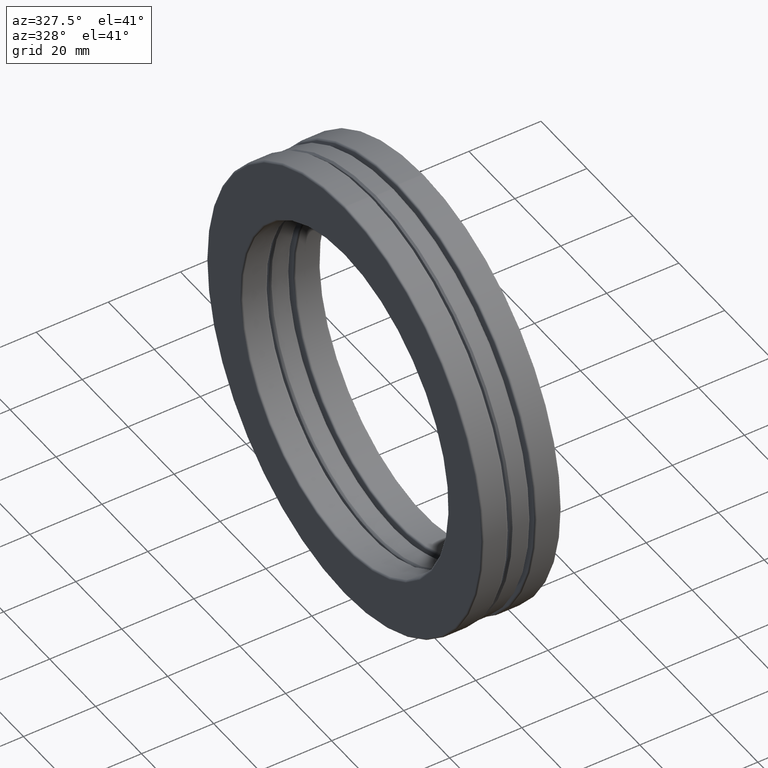
[diagram: clean part render]
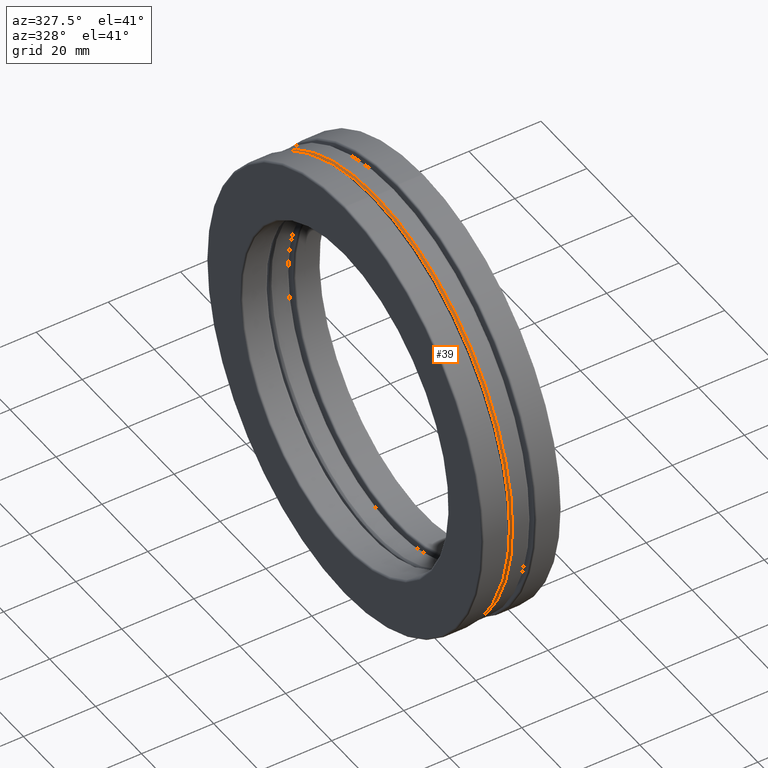
[diagram: same view with one face highlighted and labeled with its STEP entity id]
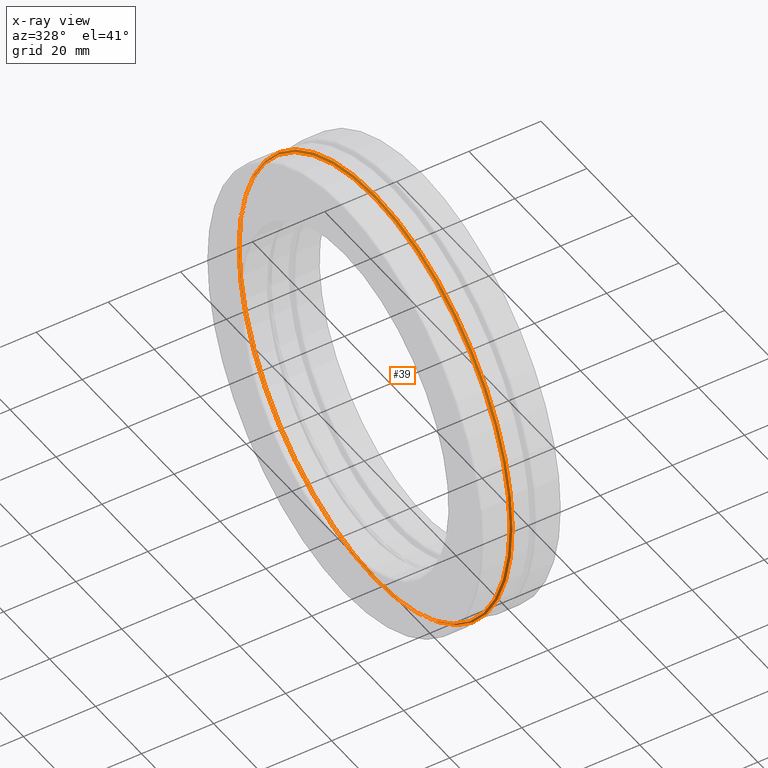
[diagram: x-ray of the same camera — body ghosted, the highlighted face saturated]
A machine part, auxiliary view. The second image highlights one B-rep face of the part: STEP entity #39.
The next image is the same camera in x-ray: the body ghosted, the highlighted face saturated — about 15% of this face is hidden behind the body in this view.
In plain terms, the highlighted conical surface has half-angle 45 deg.
Its self-contained STEP definition (entity closure, byte-faithful):
#20 = DIRECTION ( 'NONE',  ( 0.0000000000000000000, 0.0000000000000000000, 1.000000000000000000 ) ) ;
#39 = ADVANCED_FACE ( 'NONE', ( #488, #129 ), #641, .T. ) ;
#108 = DIRECTION ( 'NONE',  ( -1.000000000000000000, -0.0000000000000000000, -0.0000000000000000000 ) ) ;
#122 = VERTEX_POINT ( 'NONE', #681 ) ;
#129 = FACE_BOUND ( 'NONE', #707, .T. ) ;
#134 = ORIENTED_EDGE ( 'NONE', *, *, #162, .T. ) ;
#151 = CARTESIAN_POINT ( 'NONE',  ( -0.08825000000000000900, 0.0000000000000000000, 2.341999999999999600 ) ) ;
#162 = EDGE_CURVE ( 'NONE', #451, #451, #522, .T. ) ;
#166 = CARTESIAN_POINT ( 'NONE',  ( -0.1082500000000000100, 0.0000000000000000000, 0.0000000000000000000 ) ) ;
#200 = EDGE_CURVE ( 'NONE', #122, #122, #757, .T. ) ;
#261 = CARTESIAN_POINT ( 'NONE',  ( -0.1082500000000000100, 0.0000000000000000000, 0.0000000000000000000 ) ) ;
#373 = AXIS2_PLACEMENT_3D ( 'NONE', #166, #619, #20 ) ;
#436 = CARTESIAN_POINT ( 'NONE',  ( -0.08825000000000000900, 0.0000000000000000000, 0.0000000000000000000 ) ) ;
#451 = VERTEX_POINT ( 'NONE', #151 ) ;
#488 = FACE_OUTER_BOUND ( 'NONE', #519, .T. ) ;
#510 = DIRECTION ( 'NONE',  ( 0.0000000000000000000, 0.0000000000000000000, 1.000000000000000000 ) ) ;
#519 = EDGE_LOOP ( 'NONE', ( #134 ) ) ;
#522 = CIRCLE ( 'NONE', #758, 2.341999999999999600 ) ;
#619 = DIRECTION ( 'NONE',  ( -1.000000000000000000, -0.0000000000000000000, -0.0000000000000000000 ) ) ;
#641 = CONICAL_SURFACE ( 'NONE', #714, 2.321999999999999600, 0.7853981633974496100 ) ;
#646 = DIRECTION ( 'NONE',  ( 0.0000000000000000000, 0.0000000000000000000, -1.000000000000000000 ) ) ;
#681 = CARTESIAN_POINT ( 'NONE',  ( -0.1082500000000000100, 0.0000000000000000000, 2.321999999999999600 ) ) ;
#704 = DIRECTION ( 'NONE',  ( 1.000000000000000000, 0.0000000000000000000, 0.0000000000000000000 ) ) ;
#707 = EDGE_LOOP ( 'NONE', ( #732 ) ) ;
#714 = AXIS2_PLACEMENT_3D ( 'NONE', #261, #704, #646 ) ;
#732 = ORIENTED_EDGE ( 'NONE', *, *, #200, .F. ) ;
#757 = CIRCLE ( 'NONE', #373, 2.321999999999999600 ) ;
#758 = AXIS2_PLACEMENT_3D ( 'NONE', #436, #108, #510 ) ;